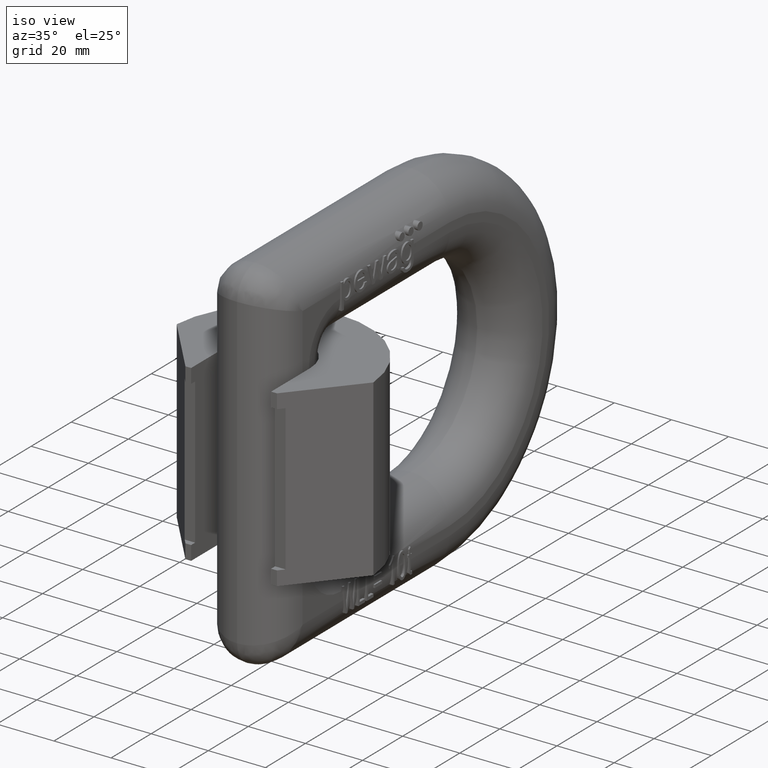
[diagram: clean part render]
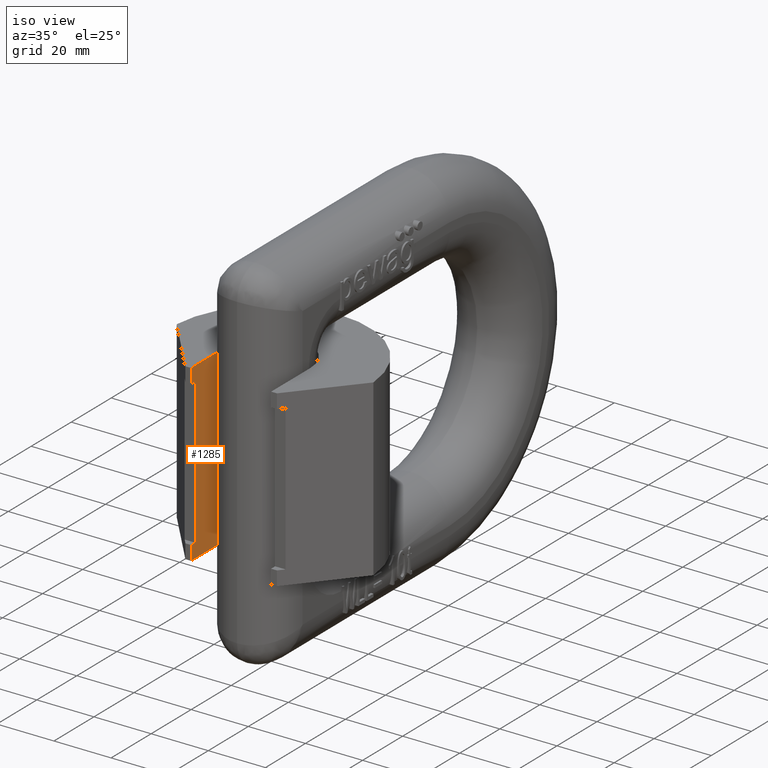
[diagram: same view with one face highlighted and labeled with its STEP entity id]
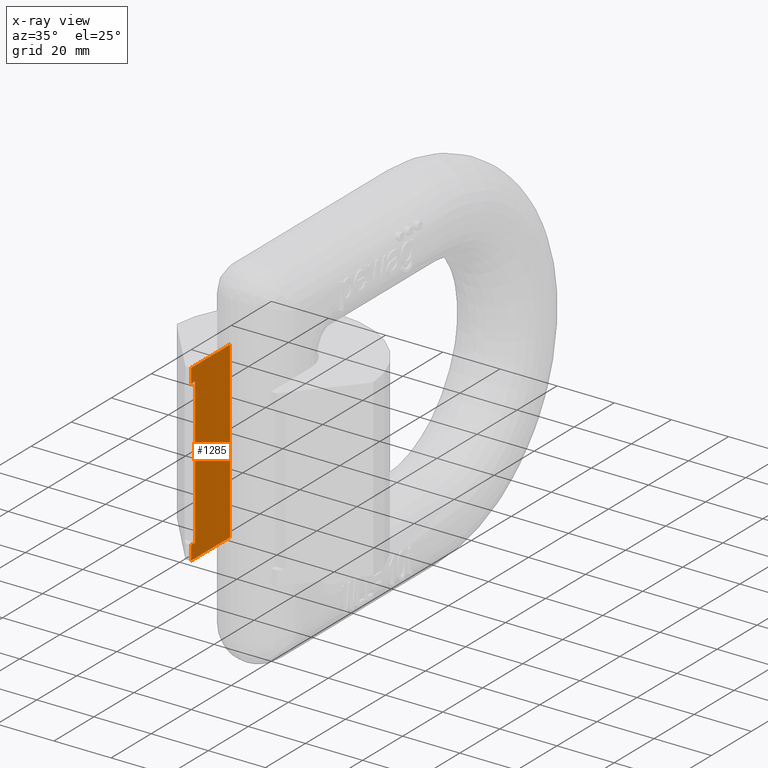
[diagram: x-ray of the same camera — body ghosted, the highlighted face saturated]
A machine part, iso view. The second image highlights one B-rep face of the part: STEP entity #1285.
The next image is the same camera in x-ray: the body ghosted, the highlighted face saturated — about 0% of this face is hidden behind the body in this view.
In plain terms, the highlighted planar face has unit normal (-1, 0, 0).
Its self-contained STEP definition (entity closure, byte-faithful):
#1038=PLANE('',#8926);
#1285=ADVANCED_FACE('',(#1807),#1038,.F.);
#1807=FACE_OUTER_BOUND('',#2251,.T.);
#2251=EDGE_LOOP('',(#2878,#2879,#2880,#2881,#2882,#2883,#2884,#2885));
#2878=ORIENTED_EDGE('',*,*,#6319,.T.);
#2879=ORIENTED_EDGE('',*,*,#6297,.T.);
#2880=ORIENTED_EDGE('',*,*,#6295,.F.);
#2881=ORIENTED_EDGE('',*,*,#6301,.F.);
#2882=ORIENTED_EDGE('',*,*,#6317,.T.);
#2883=ORIENTED_EDGE('',*,*,#6291,.T.);
#2884=ORIENTED_EDGE('',*,*,#6320,.F.);
#2885=ORIENTED_EDGE('',*,*,#6280,.F.);
#5419=VERTEX_POINT('',#11036);
#5420=VERTEX_POINT('',#11038);
#5425=VERTEX_POINT('',#11049);
#5429=VERTEX_POINT('',#11058);
#5431=VERTEX_POINT('',#11063);
#5433=VERTEX_POINT('',#11067);
#5435=VERTEX_POINT('',#11073);
#5437=VERTEX_POINT('',#11079);
#6280=EDGE_CURVE('',#5419,#5420,#7576,.T.);
#6291=EDGE_CURVE('',#5425,#5429,#7585,.T.);
#6295=EDGE_CURVE('',#5433,#5431,#7589,.T.);
#6297=EDGE_CURVE('',#5435,#5431,#7591,.T.);
#6301=EDGE_CURVE('',#5437,#5433,#7595,.T.);
#6317=EDGE_CURVE('',#5437,#5425,#7611,.T.);
#6319=EDGE_CURVE('',#5419,#5435,#7613,.T.);
#6320=EDGE_CURVE('',#5420,#5429,#7614,.T.);
#7576=LINE('',#11037,#8168);
#7585=LINE('',#11059,#8177);
#7589=LINE('',#11068,#8181);
#7591=LINE('',#11072,#8183);
#7595=LINE('',#11080,#8187);
#7611=LINE('',#11110,#8203);
#7613=LINE('',#11113,#8205);
#7614=LINE('',#11115,#8206);
#8168=VECTOR('',#9377,1.);
#8177=VECTOR('',#9392,1.);
#8181=VECTOR('',#9398,1.);
#8183=VECTOR('',#9402,1.);
#8187=VECTOR('',#9408,1.);
#8203=VECTOR('',#9436,1.);
#8205=VECTOR('',#9440,1.);
#8206=VECTOR('',#9443,1.);
#8926=AXIS2_PLACEMENT_3D('',#11116,#9444,#9445);
#9377=DIRECTION('',(1.77920356510442E-16,1.,0.));
#9392=DIRECTION('',(1.77920356510442E-16,1.,0.));
#9398=DIRECTION('',(0.,0.,1.));
#9402=DIRECTION('',(1.77920356510442E-16,1.,0.));
#9408=DIRECTION('',(1.77920356510442E-16,1.,0.));
#9436=DIRECTION('',(0.,0.,-1.));
#9440=DIRECTION('',(0.,0.,-1.));
#9443=DIRECTION('',(0.,0.,-1.));
#9444=DIRECTION('',(-1.,1.77920356510442E-16,0.));
#9445=DIRECTION('',(-1.78676518025611E-16,-1.,0.));
#11036=CARTESIAN_POINT('',(-14.,0.,30.5));
#11037=CARTESIAN_POINT('',(-14.,0.,30.5));
#11038=CARTESIAN_POINT('',(-14.,19.5,30.5));
#11049=CARTESIAN_POINT('',(-14.,0.,-30.5));
#11058=CARTESIAN_POINT('',(-14.,19.5,-30.5));
#11059=CARTESIAN_POINT('',(-14.,0.,-30.5));
#11063=CARTESIAN_POINT('',(-14.,1.99999999999998,25.5));
#11067=CARTESIAN_POINT('',(-14.,1.99999999999998,-25.5));
#11068=CARTESIAN_POINT('',(-14.,1.99999999999998,30.5));
#11072=CARTESIAN_POINT('',(-14.,0.,25.5));
#11073=CARTESIAN_POINT('',(-14.,-3.26179548396137E-17,25.5));
#11079=CARTESIAN_POINT('',(-14.,0.,-25.5));
#11080=CARTESIAN_POINT('',(-14.,0.,-25.5));
#11110=CARTESIAN_POINT('',(-14.,0.,30.5));
#11113=CARTESIAN_POINT('',(-14.,0.,30.5));
#11115=CARTESIAN_POINT('',(-14.,19.5,30.5));
#11116=CARTESIAN_POINT('',(-14.,0.,30.5));